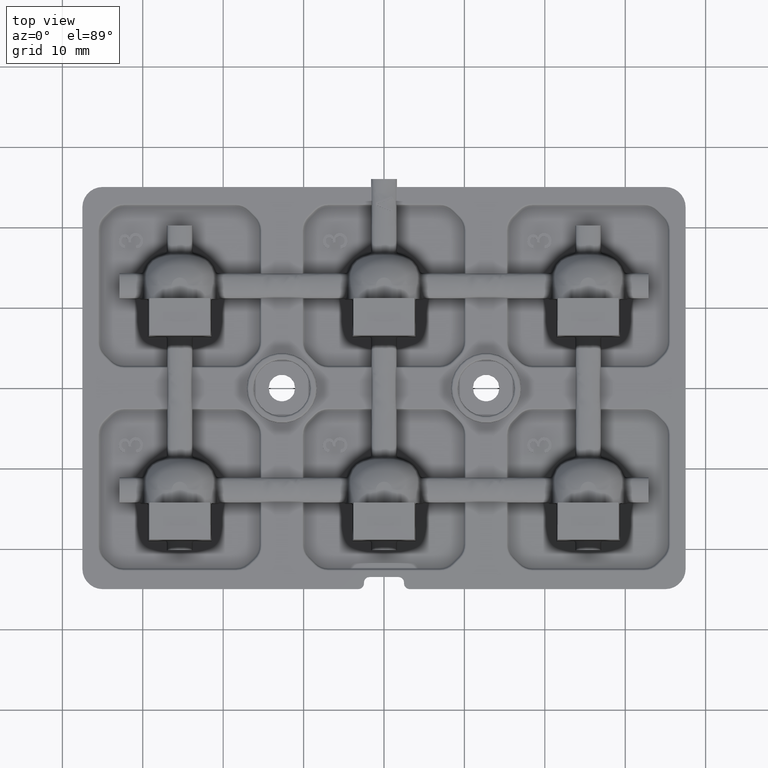
[diagram: clean part render]
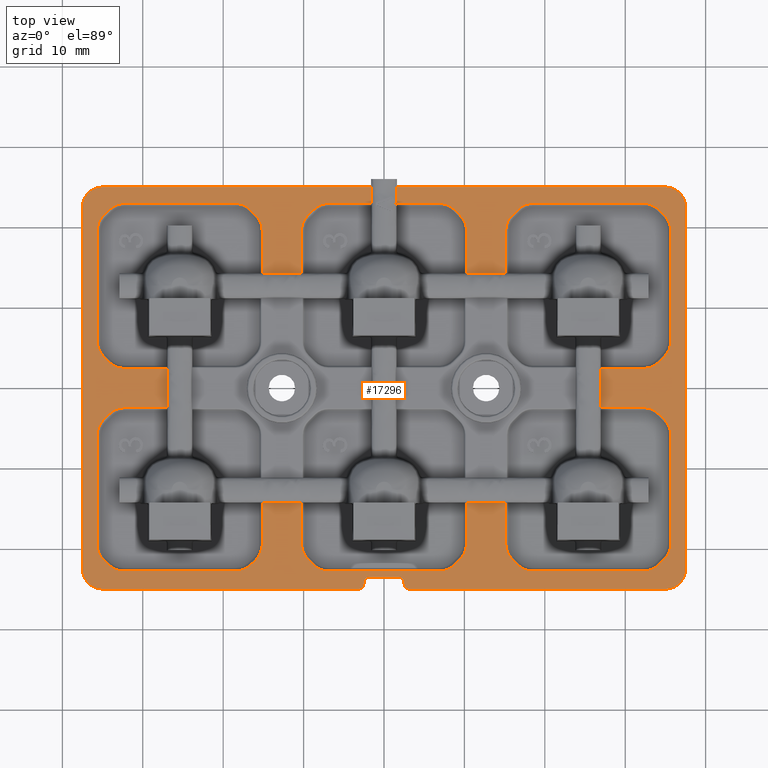
[diagram: same view with one face highlighted and labeled with its STEP entity id]
A machine part, top view. The second image highlights one B-rep face of the part: STEP entity #17296.
In plain terms, the highlighted planar face has unit normal (-0, 0, 1).
Its self-contained STEP definition (entity closure, byte-faithful):
#29 = ORIENTED_EDGE ( 'NONE', *, *, #31997, .T. ) ;
#123 = ORIENTED_EDGE ( 'NONE', *, *, #46769, .T. ) ;
#162 = EDGE_CURVE ( 'NONE', #27522, #34120, #7698, .T. ) ;
#267 = CARTESIAN_POINT ( 'NONE',  ( -34.11339317386688900, 3.183305967234028300, 1.499999999999999800 ) ) ;
#425 = ORIENTED_EDGE ( 'NONE', *, *, #43390, .T. ) ;
#595 = DIRECTION ( 'NONE',  ( 0.0000000000000000000, -0.0000000000000000000, -1.000000000000000000 ) ) ;
#623 = DIRECTION ( 'NONE',  ( 1.000000000000000000, -1.041466188199760900E-015, 0.0000000000000000000 ) ) ;
#641 = ORIENTED_EDGE ( 'NONE', *, *, #46288, .T. ) ;
#752 = ORIENTED_EDGE ( 'NONE', *, *, #48526, .T. ) ;
#872 = DIRECTION ( 'NONE',  ( -0.7071067811865483500, 0.7071067811865465700, -0.0000000000000000000 ) ) ;
#927 = LINE ( 'NONE', #2856, #41829 ) ;
#948 = EDGE_CURVE ( 'NONE', #44679, #1078, #29961, .T. ) ;
#1052 = VERTEX_POINT ( 'NONE', #19856 ) ;
#1078 = VERTEX_POINT ( 'NONE', #27767 ) ;
#1116 = CARTESIAN_POINT ( 'NONE',  ( -33.14999999999999900, -5.753300858899088200, 1.499999999999999800 ) ) ;
#1132 = CARTESIAN_POINT ( 'NONE',  ( -15.15151733829874200, -19.58085892832837500, 1.499999999999999800 ) ) ;
#1158 = VERTEX_POINT ( 'NONE', #48360 ) ;
#1237 = DIRECTION ( 'NONE',  ( 1.000000000000000000, 4.956352788505163300E-016, -0.0000000000000000000 ) ) ;
#1265 = ORIENTED_EDGE ( 'NONE', *, *, #2325, .T. ) ;
#1340 = DIRECTION ( 'NONE',  ( -0.0000000000000000000, 0.0000000000000000000, 1.000000000000000000 ) ) ;
#1348 = CARTESIAN_POINT ( 'NONE',  ( -34.91669403276598200, 3.986606826133133600, 1.499999999999999800 ) ) ;
#1418 = AXIS2_PLACEMENT_3D ( 'NONE', #48044, #24340, #623 ) ;
#1492 = VECTOR ( 'NONE', #44319, 1000.000000000000000 ) ;
#1528 = DIRECTION ( 'NONE',  ( 0.0000000000000000000, -0.0000000000000000000, -1.000000000000000000 ) ) ;
#1626 = CARTESIAN_POINT ( 'NONE',  ( 34.11339317386685400, 3.183305967234021100, 1.499999999999999800 ) ) ;
#1688 = CARTESIAN_POINT ( 'NONE',  ( 34.11339317386685400, 22.21669403276599700, 1.499999999999999800 ) ) ;
#1724 = DIRECTION ( 'NONE',  ( 1.000000000000000000, 0.0000000000000000000, 0.0000000000000000000 ) ) ;
#1729 = EDGE_CURVE ( 'NONE', #41898, #35715, #3261, .T. ) ;
#1790 = VERTEX_POINT ( 'NONE', #47907 ) ;
#1793 = CARTESIAN_POINT ( 'NONE',  ( -34.11339317386688900, 22.21669403276597900, 1.499999999999999800 ) ) ;
#1901 = DIRECTION ( 'NONE',  ( 1.000000000000000000, 0.0000000000000000000, 0.0000000000000000000 ) ) ;
#1996 = ORIENTED_EDGE ( 'NONE', *, *, #42834, .T. ) ;
#2065 = DIRECTION ( 'NONE',  ( 0.7071067811865489100, 0.7071067811865461300, -0.0000000000000000000 ) ) ;
#2067 = DIRECTION ( 'NONE',  ( -0.7411827189750838100, 0.6713033420836678200, -0.0000000000000000000 ) ) ;
#2079 = VECTOR ( 'NONE', #13587, 1000.000000000000100 ) ;
#2126 = CARTESIAN_POINT ( 'NONE',  ( -32.34669914110091300, -4.949999999999991300, 1.499999999999999800 ) ) ;
#2220 = DIRECTION ( 'NONE',  ( 0.0000000000000000000, -0.0000000000000000000, -1.000000000000000000 ) ) ;
#2258 = AXIS2_PLACEMENT_3D ( 'NONE', #44176, #20484, #48149 ) ;
#2325 = EDGE_CURVE ( 'NONE', #1078, #12818, #39781, .T. ) ;
#2356 = VERTEX_POINT ( 'NONE', #23676 ) ;
#2407 = AXIS2_PLACEMENT_3D ( 'NONE', #40842, #17141, #44824 ) ;
#2499 = EDGE_CURVE ( 'NONE', #1052, #7227, #45361, .T. ) ;
#2535 = ORIENTED_EDGE ( 'NONE', *, *, #48318, .T. ) ;
#2598 = EDGE_CURVE ( 'NONE', #41193, #18037, #12524, .T. ) ;
#2687 = CARTESIAN_POINT ( 'NONE',  ( 18.45330085889909500, -22.74848266170124900, 1.499999999999999800 ) ) ;
#2856 = CARTESIAN_POINT ( 'NONE',  ( 2.479214872172065200E-015, -25.01047623084753000, 1.499999999999999800 ) ) ;
#3014 = CARTESIAN_POINT ( 'NONE',  ( 9.516694032765967000, 21.41339317386689000, 1.499999999999999800 ) ) ;
#3144 = DIRECTION ( 'NONE',  ( 1.000000000000000000, 0.0000000000000000000, 0.0000000000000000000 ) ) ;
#3152 = ORIENTED_EDGE ( 'NONE', *, *, #37243, .T. ) ;
#3194 = DIRECTION ( 'NONE',  ( 1.000000000000000000, 0.0000000000000000000, 0.0000000000000000000 ) ) ;
#3261 = CIRCLE ( 'NONE', #9362, 2.498482661701266300 ) ;
#3393 = DIRECTION ( 'NONE',  ( -0.7071067811865414700, 0.7071067811865536800, -0.0000000000000000000 ) ) ;
#3404 = VECTOR ( 'NONE', #44349, 1000.000000000000000 ) ;
#3495 = EDGE_CURVE ( 'NONE', #9084, #18637, #10005, .T. ) ;
#3545 = VECTOR ( 'NONE', #13574, 1000.000000000000100 ) ;
#3585 = ORIENTED_EDGE ( 'NONE', *, *, #26804, .T. ) ;
#3595 = DIRECTION ( 'NONE',  ( -1.000000000000000000, -0.0000000000000000000, -0.0000000000000000000 ) ) ;
#3688 = DIRECTION ( 'NONE',  ( 2.891205793294676400E-016, -1.000000000000000000, -0.0000000000000000000 ) ) ;
#3714 = DIRECTION ( 'NONE',  ( 0.0000000000000000000, -0.0000000000000000000, -1.000000000000000000 ) ) ;
#3882 = LINE ( 'NONE', #31128, #34250 ) ;
#3981 = LINE ( 'NONE', #31830, #44899 ) ;
#3991 = EDGE_CURVE ( 'NONE', #18037, #5402, #30426, .T. ) ;
#4453 = ORIENTED_EDGE ( 'NONE', *, *, #50302, .T. ) ;
#4464 = CARTESIAN_POINT ( 'NONE',  ( -7.749999999999999100, 19.64669914110090000, 1.499999999999999800 ) ) ;
#4547 = VERTEX_POINT ( 'NONE', #35690 ) ;
#4554 = CARTESIAN_POINT ( 'NONE',  ( 6.946699141100892500, 22.94848266170126300, 1.499999999999999800 ) ) ;
#4556 = CARTESIAN_POINT ( 'NONE',  ( 35.64848266170123700, 5.753300858899097000, 1.499999999999999800 ) ) ;
#4561 = CARTESIAN_POINT ( 'NONE',  ( -3.199999999999997100, -24.30000000000000400, 1.499999999999999800 ) ) ;
#4643 = CIRCLE ( 'NONE', #2258, 0.7104762308475245400 ) ;
#4659 = EDGE_CURVE ( 'NONE', #19644, #4547, #14264, .T. ) ;
#5044 = CARTESIAN_POINT ( 'NONE',  ( -32.34669914110089900, 4.949999999999992200, 1.499999999999999800 ) ) ;
#5072 = DIRECTION ( 'NONE',  ( 1.000000000000000000, 1.735776980332937100E-015, 0.0000000000000000000 ) ) ;
#5257 = VECTOR ( 'NONE', #22547, 1000.000000000000000 ) ;
#5354 = EDGE_CURVE ( 'NONE', #7879, #27522, #36517, .T. ) ;
#5367 = ORIENTED_EDGE ( 'NONE', *, *, #44534, .T. ) ;
#5389 = DIRECTION ( 'NONE',  ( 0.0000000000000000000, -0.0000000000000000000, -1.000000000000000000 ) ) ;
#5402 = VERTEX_POINT ( 'NONE', #6582 ) ;
#5461 = VERTEX_POINT ( 'NONE', #15259 ) ;
#5554 = EDGE_CURVE ( 'NONE', #29063, #50380, #40847, .T. ) ;
#5649 = VERTEX_POINT ( 'NONE', #1348 ) ;
#5856 = ORIENTED_EDGE ( 'NONE', *, *, #17134, .T. ) ;
#5923 = EDGE_CURVE ( 'NONE', #37163, #19644, #14817, .T. ) ;
#6049 = LINE ( 'NONE', #31358, #27156 ) ;
#6089 = CARTESIAN_POINT ( 'NONE',  ( -18.45330085889913700, -2.451517338298727600, 1.499999999999999800 ) ) ;
#6124 = DIRECTION ( 'NONE',  ( 1.000000000000000000, 1.735776980332937100E-015, 0.0000000000000000000 ) ) ;
#6268 = VERTEX_POINT ( 'NONE', #20845 ) ;
#6269 = CARTESIAN_POINT ( 'NONE',  ( 18.19999999999999900, 14.25139655774487000, 1.500000000000000200 ) ) ;
#6323 = DIRECTION ( 'NONE',  ( 0.0000000000000000000, -1.000000000000000000, 0.0000000000000000000 ) ) ;
#6345 = VECTOR ( 'NONE', #51255, 1000.000000000000000 ) ;
#6395 = DIRECTION ( 'NONE',  ( 0.0000000000000000000, -0.0000000000000000000, -1.000000000000000000 ) ) ;
#6530 = LINE ( 'NONE', #33760, #5257 ) ;
#6582 = CARTESIAN_POINT ( 'NONE',  ( -1.799999999999996900, -23.51047623084752700, 1.499999999999999800 ) ) ;
#6704 = CIRCLE ( 'NONE', #45907, 2.498482661701263200 ) ;
#6816 = LINE ( 'NONE', #31717, #37150 ) ;
#6842 = AXIS2_PLACEMENT_3D ( 'NONE', #32923, #9204, #36889 ) ;
#6872 = CARTESIAN_POINT ( 'NONE',  ( -34.82723976093815600, -21.43269110084024500, 1.499999999999999800 ) ) ;
#6943 = VERTEX_POINT ( 'NONE', #7130 ) ;
#6988 = EDGE_CURVE ( 'NONE', #50380, #41898, #14700, .T. ) ;
#7020 = DIRECTION ( 'NONE',  ( 0.0000000000000000000, -0.0000000000000000000, -1.000000000000000000 ) ) ;
#7075 = AXIS2_PLACEMENT_3D ( 'NONE', #15282, #42978, #19303 ) ;
#7130 = CARTESIAN_POINT ( 'NONE',  ( -9.516694032765963500, 21.41339317386688600, 1.499999999999999800 ) ) ;
#7177 = ORIENTED_EDGE ( 'NONE', *, *, #34839, .T. ) ;
#7227 = VERTEX_POINT ( 'NONE', #32720 ) ;
#7349 = ORIENTED_EDGE ( 'NONE', *, *, #41190, .T. ) ;
#7629 = ORIENTED_EDGE ( 'NONE', *, *, #162, .T. ) ;
#7645 = DIRECTION ( 'NONE',  ( -0.0000000000000000000, -1.000000000000000000, -0.0000000000000000000 ) ) ;
#7685 = CARTESIAN_POINT ( 'NONE',  ( -7.200000000000002000, -14.25139655774488500, 1.499999999999999800 ) ) ;
#7698 = LINE ( 'NONE', #17164, #28769 ) ;
#7828 = CIRCLE ( 'NONE', #8266, 2.498482661701264500 ) ;
#7879 = VERTEX_POINT ( 'NONE', #12195 ) ;
#7902 = AXIS2_PLACEMENT_3D ( 'NONE', #25956, #2220, #29960 ) ;
#7926 = ORIENTED_EDGE ( 'NONE', *, *, #8837, .T. ) ;
#7983 = DIRECTION ( 'NONE',  ( -1.000000000000000000, -2.477018987411954900E-016, 0.0000000000000000000 ) ) ;
#8008 = ORIENTED_EDGE ( 'NONE', *, *, #948, .T. ) ;
#8023 = CARTESIAN_POINT ( 'NONE',  ( 34.91669403276596700, -3.986606826133148200, 1.499999999999999800 ) ) ;
#8105 = CARTESIAN_POINT ( 'NONE',  ( 16.68660682613312900, -22.01669403276599000, 1.499999999999999800 ) ) ;
#8266 = AXIS2_PLACEMENT_3D ( 'NONE', #33836, #10128, #37824 ) ;
#8309 = CARTESIAN_POINT ( 'NONE',  ( -1.551396557744881600, 25.01047623084751900, 1.499999999999999300 ) ) ;
#8342 = ORIENTED_EDGE ( 'NONE', *, *, #31590, .T. ) ;
#8363 = AXIS2_PLACEMENT_3D ( 'NONE', #27442, #3714, #31423 ) ;
#8430 = ORIENTED_EDGE ( 'NONE', *, *, #45655, .T. ) ;
#8431 = ORIENTED_EDGE ( 'NONE', *, *, #38766, .T. ) ;
#8451 = AXIS2_PLACEMENT_3D ( 'NONE', #17405, #45069, #21346 ) ;
#8471 = DIRECTION ( 'NONE',  ( 1.000000000000000000, 0.0000000000000000000, 0.0000000000000000000 ) ) ;
#8477 = CARTESIAN_POINT ( 'NONE',  ( 10.24848266170126400, 14.25139655774487000, 1.499999999999999800 ) ) ;
#8577 = DIRECTION ( 'NONE',  ( 1.000000000000000000, 0.0000000000000000000, 0.0000000000000000000 ) ) ;
#8837 = EDGE_CURVE ( 'NONE', #49258, #44679, #39380, .T. ) ;
#8889 = DIRECTION ( 'NONE',  ( 0.0000000000000000000, -0.0000000000000000000, -1.000000000000000000 ) ) ;
#8967 = LINE ( 'NONE', #6269, #21994 ) ;
#9023 = CARTESIAN_POINT ( 'NONE',  ( 37.51047623084753000, 22.49999999999999600, 1.499999999999999800 ) ) ;
#9041 = DIRECTION ( 'NONE',  ( 1.000000000000000000, 1.735776980332937100E-015, 0.0000000000000000000 ) ) ;
#9066 = LINE ( 'NONE', #7685, #38196 ) ;
#9084 = VERTEX_POINT ( 'NONE', #8309 ) ;
#9098 = ORIENTED_EDGE ( 'NONE', *, *, #35210, .T. ) ;
#9113 = CARTESIAN_POINT ( 'NONE',  ( 0.0000000000000000000, 25.01047623084751900, 1.499999999999999800 ) ) ;
#9117 = AXIS2_PLACEMENT_3D ( 'NONE', #22287, #49925, #26218 ) ;
#9204 = DIRECTION ( 'NONE',  ( -0.0000000000000000000, 0.0000000000000000000, 1.000000000000000000 ) ) ;
#9210 = LINE ( 'NONE', #14108, #17300 ) ;
#9221 = EDGE_CURVE ( 'NONE', #10175, #25441, #36238, .T. ) ;
#9313 = ORIENTED_EDGE ( 'NONE', *, *, #5354, .T. ) ;
#9348 = CARTESIAN_POINT ( 'NONE',  ( -33.14999999999999900, -19.58085892832839600, 1.499999999999999800 ) ) ;
#9354 = VERTEX_POINT ( 'NONE', #26457 ) ;
#9362 = AXIS2_PLACEMENT_3D ( 'NONE', #39446, #15745, #43437 ) ;
#9509 = VECTOR ( 'NONE', #12006, 1000.000000000000000 ) ;
#9576 = DIRECTION ( 'NONE',  ( -0.0000000000000000000, 1.000000000000000000, -0.0000000000000000000 ) ) ;
#9580 = VERTEX_POINT ( 'NONE', #21081 ) ;
#9655 = VERTEX_POINT ( 'NONE', #45629 ) ;
#9715 = AXIS2_PLACEMENT_3D ( 'NONE', #9348, #37031, #13323 ) ;
#9717 = ORIENTED_EDGE ( 'NONE', *, *, #40823, .T. ) ;
#9769 = DIRECTION ( 'NONE',  ( -1.000000000000000000, -0.0000000000000000000, -0.0000000000000000000 ) ) ;
#9881 = CARTESIAN_POINT ( 'NONE',  ( 32.34669914110087800, 2.451517338298730800, 1.499999999999999800 ) ) ;
#9940 = CARTESIAN_POINT ( 'NONE',  ( 34.11339317386685400, -22.01669403276596200, 1.499999999999999800 ) ) ;
#10005 = LINE ( 'NONE', #36684, #11255 ) ;
#10011 = DIRECTION ( 'NONE',  ( 1.387778780781445700E-016, -1.000000000000000000, -0.0000000000000000000 ) ) ;
#10128 = DIRECTION ( 'NONE',  ( 0.0000000000000000000, -0.0000000000000000000, -1.000000000000000000 ) ) ;
#10138 = AXIS2_PLACEMENT_3D ( 'NONE', #18373, #46059, #22357 ) ;
#10175 = VERTEX_POINT ( 'NONE', #45926 ) ;
#10178 = AXIS2_PLACEMENT_3D ( 'NONE', #32602, #8889, #36597 ) ;
#10183 = LINE ( 'NONE', #37288, #2079 ) ;
#10185 = CIRCLE ( 'NONE', #32202, 2.498482661701266300 ) ;
#10207 = AXIS2_PLACEMENT_3D ( 'NONE', #25060, #1340, #29068 ) ;
#10251 = VERTEX_POINT ( 'NONE', #33379 ) ;
#10411 = AXIS2_PLACEMENT_3D ( 'NONE', #2126, #29880, #6124 ) ;
#10488 = VECTOR ( 'NONE', #9576, 1000.000000000000000 ) ;
#10533 = EDGE_CURVE ( 'NONE', #5461, #41193, #11427, .T. ) ;
#10541 = AXIS2_PLACEMENT_3D ( 'NONE', #49145, #25457, #1724 ) ;
#10642 = EDGE_CURVE ( 'NONE', #25441, #7879, #10183, .T. ) ;
#10673 = VERTEX_POINT ( 'NONE', #25520 ) ;
#10784 = VECTOR ( 'NONE', #42434, 1000.000000000000000 ) ;
#10834 = VERTEX_POINT ( 'NONE', #26889 ) ;
#10927 = ORIENTED_EDGE ( 'NONE', *, *, #34218, .T. ) ;
#11109 = CARTESIAN_POINT ( 'NONE',  ( 26.95139655774488200, -2.451517338298728100, 1.499999999999999800 ) ) ;
#11175 = CARTESIAN_POINT ( 'NONE',  ( -32.34669914110091300, 2.451517338298730800, 1.499999999999999800 ) ) ;
#11195 = ORIENTED_EDGE ( 'NONE', *, *, #2499, .T. ) ;
#11201 = CIRCLE ( 'NONE', #46523, 2.498482661701264100 ) ;
#11229 = EDGE_CURVE ( 'NONE', #6268, #37163, #39860, .T. ) ;
#11234 = ORIENTED_EDGE ( 'NONE', *, *, #37623, .T. ) ;
#11235 = VECTOR ( 'NONE', #41473, 1000.000000000000100 ) ;
#11255 = VECTOR ( 'NONE', #24754, 1000.000000000000000 ) ;
#11256 = LINE ( 'NONE', #9113, #20536 ) ;
#11411 = CARTESIAN_POINT ( 'NONE',  ( -7.200000000000002000, 14.25139655774487000, 1.500000000000000200 ) ) ;
#11427 = CIRCLE ( 'NONE', #34458, 0.7104762308475240900 ) ;
#11620 = ORIENTED_EDGE ( 'NONE', *, *, #40496, .T. ) ;
#11797 = DIRECTION ( 'NONE',  ( -2.091704922703429400E-015, 1.000000000000000000, -0.0000000000000000000 ) ) ;
#12006 = DIRECTION ( 'NONE',  ( 0.7071067811865469100, -0.7071067811865482400, 0.0000000000000000000 ) ) ;
#12102 = VERTEX_POINT ( 'NONE', #27750 ) ;
#12136 = VERTEX_POINT ( 'NONE', #12519 ) ;
#12195 = CARTESIAN_POINT ( 'NONE',  ( -15.88330596723404000, 21.41339317386689700, 1.499999999999999800 ) ) ;
#12378 = VERTEX_POINT ( 'NONE', #26670 ) ;
#12519 = CARTESIAN_POINT ( 'NONE',  ( 35.64848266170123700, 19.64669914110092800, 1.499999999999999800 ) ) ;
#12524 = LINE ( 'NONE', #36603, #32334 ) ;
#12606 = VERTEX_POINT ( 'NONE', #48277 ) ;
#12651 = CARTESIAN_POINT ( 'NONE',  ( -35.64848266170125900, -5.753300858899088200, 1.499999999999999800 ) ) ;
#12818 = VERTEX_POINT ( 'NONE', #46030 ) ;
#12854 = LINE ( 'NONE', #33297, #3545 ) ;
#12894 = DIRECTION ( 'NONE',  ( -0.0000000000000000000, 1.000000000000000000, -0.0000000000000000000 ) ) ;
#12895 = VERTEX_POINT ( 'NONE', #4556 ) ;
#13064 = ORIENTED_EDGE ( 'NONE', *, *, #27113, .T. ) ;
#13079 = CARTESIAN_POINT ( 'NONE',  ( -6.946699141100888000, -22.74848266170126000, 1.499999999999999800 ) ) ;
#13111 = ORIENTED_EDGE ( 'NONE', *, *, #43118, .F. ) ;
#13323 = DIRECTION ( 'NONE',  ( 1.000000000000000000, 4.165864752799049000E-015, 0.0000000000000000000 ) ) ;
#13336 = CARTESIAN_POINT ( 'NONE',  ( -15.15151733829874200, 19.64669914110091400, 1.499999999999999800 ) ) ;
#13469 = EDGE_CURVE ( 'NONE', #21816, #29063, #28623, .T. ) ;
#13574 = DIRECTION ( 'NONE',  ( 0.7071067811865396900, 0.7071067811865553400, -0.0000000000000000000 ) ) ;
#13587 = DIRECTION ( 'NONE',  ( 0.7071067811865490200, -0.7071067811865460200, 0.0000000000000000000 ) ) ;
#13586 = DIRECTION ( 'NONE',  ( 0.0000000000000000000, -0.0000000000000000000, -1.000000000000000000 ) ) ;
#13692 = CARTESIAN_POINT ( 'NONE',  ( 32.34669914110086400, -20.24999999999998200, 1.499999999999999800 ) ) ;
#13748 = CARTESIAN_POINT ( 'NONE',  ( -34.11339317386689600, 22.21669403276597500, 1.499999999999999800 ) ) ;
#13756 = AXIS2_PLACEMENT_3D ( 'NONE', #41933, #18243, #45915 ) ;
#13967 = CARTESIAN_POINT ( 'NONE',  ( -37.51047623084752300, -5.205624297017697500E-015, 1.499999999999999800 ) ) ;
#14108 = CARTESIAN_POINT ( 'NONE',  ( 8.713393173866856900, -22.01669403276597900, 1.499999999999999800 ) ) ;
#14159 = VERTEX_POINT ( 'NONE', #27081 ) ;
#14256 = VERTEX_POINT ( 'NONE', #31573 ) ;
#14261 = CARTESIAN_POINT ( 'NONE',  ( 17.64999999999997400, 19.64669914110090700, 1.499999999999999800 ) ) ;
#14264 = LINE ( 'NONE', #28593, #42151 ) ;
#14346 = ORIENTED_EDGE ( 'NONE', *, *, #27472, .T. ) ;
#14700 = LINE ( 'NONE', #23448, #15944 ) ;
#14727 = CARTESIAN_POINT ( 'NONE',  ( 18.45330085889909500, -22.74848266170124900, 1.499999999999999800 ) ) ;
#14783 = ORIENTED_EDGE ( 'NONE', *, *, #49879, .T. ) ;
#14789 = CIRCLE ( 'NONE', #45679, 2.498482661701264100 ) ;
#14803 = CIRCLE ( 'NONE', #15049, 2.510476230847526100 ) ;
#14817 = CIRCLE ( 'NONE', #9117, 2.498482661701263200 ) ;
#14818 = CARTESIAN_POINT ( 'NONE',  ( -32.41120463315430600, -22.74848266170125300, 1.499999999999999800 ) ) ;
#14877 = FACE_OUTER_BOUND ( 'NONE', #21467, .T. ) ;
#14947 = LINE ( 'NONE', #13079, #44042 ) ;
#15049 = AXIS2_PLACEMENT_3D ( 'NONE', #45013, #21298, #48973 ) ;
#15093 = CARTESIAN_POINT ( 'NONE',  ( 1.800000000000002500, -24.20000000000000300, 1.499999999999999800 ) ) ;
#15200 = DIRECTION ( 'NONE',  ( -0.7411827189750821400, -0.6713033420836697100, -0.0000000000000000000 ) ) ;
#15202 = VECTOR ( 'NONE', #10011, 1000.000000000000000 ) ;
#15259 = CARTESIAN_POINT ( 'NONE',  ( -3.199999999999997100, -25.01047623084753000, 1.499999999999999800 ) ) ;
#15282 = CARTESIAN_POINT ( 'NONE',  ( -6.946699141100885400, 20.45000000000000300, 1.499999999999999800 ) ) ;
#15302 = CARTESIAN_POINT ( 'NONE',  ( 32.34669914110089200, 22.94848266170127400, 1.499999999999999800 ) ) ;
#15397 = VECTOR ( 'NONE', #7983, 1000.000000000000000 ) ;
#15406 = LINE ( 'NONE', #11411, #45751 ) ;
#15745 = DIRECTION ( 'NONE',  ( 0.0000000000000000000, -0.0000000000000000000, -1.000000000000000000 ) ) ;
#15802 = DIRECTION ( 'NONE',  ( 1.000000000000000000, -0.0000000000000000000, 0.0000000000000000000 ) ) ;
#15935 = VERTEX_POINT ( 'NONE', #17015 ) ;
#15941 = CARTESIAN_POINT ( 'NONE',  ( 15.15151733829871000, 14.25139655774487000, 1.499999999999999800 ) ) ;
#15944 = VECTOR ( 'NONE', #51068, 1000.000000000000000 ) ;
#15961 = CIRCLE ( 'NONE', #10207, 2.510476230847526100 ) ;
#16211 = DIRECTION ( 'NONE',  ( 2.201794655477292800E-016, 1.000000000000000000, -0.0000000000000000000 ) ) ;
#16235 = CARTESIAN_POINT ( 'NONE',  ( 34.91669403276594600, 21.41339317386690400, 1.499999999999999800 ) ) ;
#16274 = DIRECTION ( 'NONE',  ( 0.0000000000000000000, -0.0000000000000000000, -1.000000000000000000 ) ) ;
#16358 = ORIENTED_EDGE ( 'NONE', *, *, #38929, .T. ) ;
#16367 = DIRECTION ( 'NONE',  ( -0.0000000000000000000, -1.000000000000000000, -0.0000000000000000000 ) ) ;
#16427 = LINE ( 'NONE', #13967, #15202 ) ;
#16440 = ORIENTED_EDGE ( 'NONE', *, *, #37785, .T. ) ;
#16499 = CARTESIAN_POINT ( 'NONE',  ( 15.15151733829871000, -14.25139655774488500, 1.499999999999999800 ) ) ;
#16794 = VERTEX_POINT ( 'NONE', #20869 ) ;
#16804 = VECTOR ( 'NONE', #49237, 1000.000000000000000 ) ;
#17007 = LINE ( 'NONE', #26959, #46104 ) ;
#17015 = CARTESIAN_POINT ( 'NONE',  ( 8.713393173866862200, 22.21669403276598900, 1.499999999999999800 ) ) ;
#17083 = DIRECTION ( 'NONE',  ( -1.000000000000000000, -4.403589310954595000E-016, -0.0000000000000000000 ) ) ;
#17091 = LINE ( 'NONE', #43276, #26343 ) ;
#17134 = EDGE_CURVE ( 'NONE', #20762, #10175, #6816, .T. ) ;
#17141 = DIRECTION ( 'NONE',  ( 0.0000000000000000000, -0.0000000000000000000, -1.000000000000000000 ) ) ;
#17164 = CARTESIAN_POINT ( 'NONE',  ( -15.15151733829874200, 5.753300858899107700, 1.499999999999999800 ) ) ;
#17193 = CARTESIAN_POINT ( 'NONE',  ( 33.14999999999997000, -5.753300858899103300, 1.499999999999999800 ) ) ;
#17296 = ADVANCED_FACE ( 'NONE', ( #14877 ), #48816, .T. ) ;
#17300 = VECTOR ( 'NONE', #41810, 1000.000000000000000 ) ;
#17309 = CARTESIAN_POINT ( 'NONE',  ( 33.14999999999997000, 19.64669914110092100, 1.499999999999999800 ) ) ;
#17315 = VERTEX_POINT ( 'NONE', #21661 ) ;
#17318 = ORIENTED_EDGE ( 'NONE', *, *, #46960, .T. ) ;
#17364 = LINE ( 'NONE', #31229, #37137 ) ;
#17405 = CARTESIAN_POINT ( 'NONE',  ( -32.34669914110091300, 20.45000000000000300, 1.499999999999999800 ) ) ;
#17430 = CIRCLE ( 'NONE', #33324, 2.498482661701266300 ) ;
#17596 = CARTESIAN_POINT ( 'NONE',  ( 34.91669403276596000, -3.986606826133138400, 1.499999999999999800 ) ) ;
#17602 = DIRECTION ( 'NONE',  ( -0.0000000000000000000, -1.000000000000000000, 0.0000000000000000000 ) ) ;
#17660 = VECTOR ( 'NONE', #6323, 1000.000000000000000 ) ;
#17698 = DIRECTION ( 'NONE',  ( 1.000000000000000000, 0.0000000000000000000, 0.0000000000000000000 ) ) ;
#17848 = LINE ( 'NONE', #44062, #27110 ) ;
#18002 = CARTESIAN_POINT ( 'NONE',  ( 33.14999999999997000, 5.753300858899095300, 1.499999999999999800 ) ) ;
#18037 = VERTEX_POINT ( 'NONE', #34746 ) ;
#18059 = DIRECTION ( 'NONE',  ( 1.000000000000000000, 2.201794655477297500E-016, -0.0000000000000000000 ) ) ;
#18122 = VECTOR ( 'NONE', #2065, 1000.000000000000100 ) ;
#18184 = LINE ( 'NONE', #27562, #6345 ) ;
#18243 = DIRECTION ( 'NONE',  ( 0.0000000000000000000, -0.0000000000000000000, -1.000000000000000000 ) ) ;
#18279 = DIRECTION ( 'NONE',  ( 1.000000000000000000, 0.0000000000000000000, 0.0000000000000000000 ) ) ;
#18284 = CARTESIAN_POINT ( 'NONE',  ( 34.11339317386684700, -22.01669403276596200, 1.499999999999999800 ) ) ;
#18311 = LINE ( 'NONE', #27011, #27549 ) ;
#18361 = AXIS2_PLACEMENT_3D ( 'NONE', #14261, #41973, #18279 ) ;
#18368 = VERTEX_POINT ( 'NONE', #25231 ) ;
#18373 = CARTESIAN_POINT ( 'NONE',  ( -33.14999999999998400, 5.753300858899096100, 1.499999999999999800 ) ) ;
#18396 = ORIENTED_EDGE ( 'NONE', *, *, #27653, .T. ) ;
#18637 = VERTEX_POINT ( 'NONE', #36099 ) ;
#18641 = CARTESIAN_POINT ( 'NONE',  ( 6.946699141100892500, -20.24999999999999300, 1.499999999999999800 ) ) ;
#18701 = CIRCLE ( 'NONE', #1418, 2.498482661701266300 ) ;
#18766 = VERTEX_POINT ( 'NONE', #17596 ) ;
#18980 = CARTESIAN_POINT ( 'NONE',  ( 10.24848266170126400, 19.64669914110091000, 1.499999999999999800 ) ) ;
#19104 = DIRECTION ( 'NONE',  ( 1.000000000000000000, 0.0000000000000000000, 0.0000000000000000000 ) ) ;
#19214 = VECTOR ( 'NONE', #18059, 1000.000000000000000 ) ;
#19249 = CARTESIAN_POINT ( 'NONE',  ( -15.97276023906184900, -21.43269110084022000, 1.499999999999999800 ) ) ;
#19303 = DIRECTION ( 'NONE',  ( 1.000000000000000000, -1.388621584266348900E-015, 0.0000000000000000000 ) ) ;
#19491 = LINE ( 'NONE', #22435, #40490 ) ;
#19618 = AXIS2_PLACEMENT_3D ( 'NONE', #30140, #6395, #34113 ) ;
#19644 = VERTEX_POINT ( 'NONE', #8105 ) ;
#19856 = CARTESIAN_POINT ( 'NONE',  ( -35.64848266170125200, 5.753300858899095300, 1.499999999999999800 ) ) ;
#19859 = ORIENTED_EDGE ( 'NONE', *, *, #5923, .T. ) ;
#20025 = VERTEX_POINT ( 'NONE', #6872 ) ;
#20046 = AXIS2_PLACEMENT_3D ( 'NONE', #37287, #13586, #41285 ) ;
#20146 = ORIENTED_EDGE ( 'NONE', *, *, #34770, .T. ) ;
#20212 = VERTEX_POINT ( 'NONE', #267 ) ;
#20407 = LINE ( 'NONE', #25965, #19214 ) ;
#20484 = DIRECTION ( 'NONE',  ( -0.0000000000000000000, 0.0000000000000000000, 1.000000000000000000 ) ) ;
#20536 = VECTOR ( 'NONE', #25208, 1000.000000000000000 ) ;
#20540 = DIRECTION ( 'NONE',  ( 1.000000000000000000, 2.201794655477297500E-016, -0.0000000000000000000 ) ) ;
#20548 = CARTESIAN_POINT ( 'NONE',  ( -34.11339317386691100, -3.183305967234034000, 1.499999999999999800 ) ) ;
#20700 = LINE ( 'NONE', #18284, #31224 ) ;
#20762 = VERTEX_POINT ( 'NONE', #45712 ) ;
#20845 = CARTESIAN_POINT ( 'NONE',  ( 32.34669914110087800, -22.74848266170124600, 1.499999999999999800 ) ) ;
#20859 = LINE ( 'NONE', #1132, #31374 ) ;
#20869 = CARTESIAN_POINT ( 'NONE',  ( 2.489523769152478300, -24.30000000000000400, 1.499999999999999800 ) ) ;
#20953 = ORIENTED_EDGE ( 'NONE', *, *, #34601, .T. ) ;
#21000 = VERTEX_POINT ( 'NONE', #29379 ) ;
#21020 = LINE ( 'NONE', #29320, #10488 ) ;
#21078 = EDGE_CURVE ( 'NONE', #42034, #5461, #927, .T. ) ;
#21081 = CARTESIAN_POINT ( 'NONE',  ( -26.95139655774488200, -2.451517338298727200, 1.499999999999999800 ) ) ;
#21150 = DIRECTION ( 'NONE',  ( 1.000000000000000000, -6.943107921331739700E-015, 0.0000000000000000000 ) ) ;
#21204 = ORIENTED_EDGE ( 'NONE', *, *, #36714, .T. ) ;
#21261 = DIRECTION ( 'NONE',  ( 1.000000000000000000, 4.165864752799043500E-015, 0.0000000000000000000 ) ) ;
#21298 = DIRECTION ( 'NONE',  ( -0.0000000000000000000, 0.0000000000000000000, 1.000000000000000000 ) ) ;
#21321 = DIRECTION ( 'NONE',  ( -1.387778780781446200E-016, 1.000000000000000000, -0.0000000000000000000 ) ) ;
#21346 = DIRECTION ( 'NONE',  ( 1.000000000000000000, -1.388621584266349700E-015, 0.0000000000000000000 ) ) ;
#21384 = CARTESIAN_POINT ( 'NONE',  ( -2.489523769152472500, -24.30000000000000400, 1.499999999999999800 ) ) ;
#21467 = EDGE_LOOP ( 'NONE', ( #33312, #44453, #3585, #34805, #1996, #47360, #31388, #23361, #44379, #25375, #33512, #47271, #41178, #11620, #24647, #21525, #32894, #21204, #16358, #8431, #41235, #10927, #24744, #13064, #4453, #13111, #50614, #34538, #31406, #41553, #49646, #44828, #42505, #40586, #9717, #22905, #641, #24913, #49651, #28915, #22875, #20953, #29, #14346, #44167, #51109, #8342, #51175, #32734, #19859, #23082, #50179, #8430, #43246, #7349, #28492, #3152, #23736, #20146, #7177, #28242, #25358, #50763, #2535, #25178, #47439, #21528, #7926, #8008, #1265, #752, #39302, #425, #27593, #23531, #17318, #11234, #31348, #16440, #9098, #46939, #37722, #11195, #123, #47939, #18396, #5856, #33351, #47698, #9313, #7629, #35621, #40044, #5367, #14783, #29100 ) ) ;
#21484 = CARTESIAN_POINT ( 'NONE',  ( 1.239607436086032300E-014, -25.01047623084753000, 1.499999999999999800 ) ) ;
#21492 = AXIS2_PLACEMENT_3D ( 'NONE', #25261, #1528, #29261 ) ;
#21525 = ORIENTED_EDGE ( 'NONE', *, *, #45985, .T. ) ;
#21528 = ORIENTED_EDGE ( 'NONE', *, *, #22056, .T. ) ;
#21554 = CIRCLE ( 'NONE', #10411, 2.498482661701263200 ) ;
#21577 = CARTESIAN_POINT ( 'NONE',  ( 18.19999999999999900, -14.25139655774488500, 1.499999999999999800 ) ) ;
#21661 = CARTESIAN_POINT ( 'NONE',  ( -10.24848266170126400, -14.25139655774488500, 1.499999999999999800 ) ) ;
#21755 = EDGE_CURVE ( 'NONE', #45729, #6268, #10185, .T. ) ;
#21756 = CARTESIAN_POINT ( 'NONE',  ( 1.551396557744881600, 25.01047623084751900, 1.499999999999999600 ) ) ;
#21816 = VERTEX_POINT ( 'NONE', #40668 ) ;
#21946 = DIRECTION ( 'NONE',  ( 1.000000000000000000, 0.0000000000000000000, 0.0000000000000000000 ) ) ;
#21994 = VECTOR ( 'NONE', #30015, 1000.000000000000000 ) ;
#22009 = CIRCLE ( 'NONE', #6842, 2.510476230847526100 ) ;
#22056 = EDGE_CURVE ( 'NONE', #46328, #49258, #17007, .T. ) ;
#22287 = CARTESIAN_POINT ( 'NONE',  ( 18.45330085889908700, -20.24999999999998600, 1.499999999999999800 ) ) ;
#22357 = DIRECTION ( 'NONE',  ( 1.000000000000000000, 3.471553960665874200E-015, 0.0000000000000000000 ) ) ;
#22435 = CARTESIAN_POINT ( 'NONE',  ( 9.516694032765967000, 21.41339317386689000, 1.499999999999999800 ) ) ;
#22525 = CARTESIAN_POINT ( 'NONE',  ( -8.713393173866862200, -22.01669403276597900, 1.499999999999999800 ) ) ;
#22547 = DIRECTION ( 'NONE',  ( -1.000000000000000000, -5.504486638693240100E-017, -0.0000000000000000000 ) ) ;
#22553 = CARTESIAN_POINT ( 'NONE',  ( -37.51047623084752300, 22.49999999999999300, 1.499999999999999800 ) ) ;
#22615 = DIRECTION ( 'NONE',  ( 1.000000000000000000, 1.388621584266349100E-015, 0.0000000000000000000 ) ) ;
#22875 = ORIENTED_EDGE ( 'NONE', *, *, #37161, .T. ) ;
#22905 = ORIENTED_EDGE ( 'NONE', *, *, #40892, .T. ) ;
#22906 = CARTESIAN_POINT ( 'NONE',  ( -16.68660682613314000, 22.21669403276599300, 1.499999999999999800 ) ) ;
#22942 = VERTEX_POINT ( 'NONE', #8477 ) ;
#23000 = LINE ( 'NONE', #39478, #32221 ) ;
#23053 = DIRECTION ( 'NONE',  ( 0.0000000000000000000, -0.0000000000000000000, -1.000000000000000000 ) ) ;
#23058 = DIRECTION ( 'NONE',  ( -0.7071067811865476800, -0.7071067811865473500, -0.0000000000000000000 ) ) ;
#23082 = ORIENTED_EDGE ( 'NONE', *, *, #4659, .T. ) ;
#23361 = ORIENTED_EDGE ( 'NONE', *, *, #10533, .T. ) ;
#23425 = VECTOR ( 'NONE', #9769, 1000.000000000000000 ) ;
#23448 = CARTESIAN_POINT ( 'NONE',  ( 32.34669914110089200, 22.94848266170126600, 1.499999999999999800 ) ) ;
#23466 = VERTEX_POINT ( 'NONE', #48736 ) ;
#23531 = ORIENTED_EDGE ( 'NONE', *, *, #38921, .T. ) ;
#23645 = CIRCLE ( 'NONE', #39634, 2.498482661701264500 ) ;
#23676 = CARTESIAN_POINT ( 'NONE',  ( 35.64848266170123700, -5.753300858899105000, 1.499999999999999800 ) ) ;
#23736 = ORIENTED_EDGE ( 'NONE', *, *, #37311, .T. ) ;
#23815 = VERTEX_POINT ( 'NONE', #32619 ) ;
#24039 = EDGE_CURVE ( 'NONE', #27717, #21816, #47926, .T. ) ;
#24115 = CIRCLE ( 'NONE', #49623, 2.498482661701264500 ) ;
#24133 = VECTOR ( 'NONE', #21321, 1000.000000000000000 ) ;
#24315 = CARTESIAN_POINT ( 'NONE',  ( -18.38879536684574100, -20.24999999999998900, 1.499999999999999800 ) ) ;
#24340 = DIRECTION ( 'NONE',  ( 0.0000000000000000000, -0.0000000000000000000, -1.000000000000000000 ) ) ;
#24487 = DIRECTION ( 'NONE',  ( -1.321076793286375500E-015, 1.000000000000000000, -0.0000000000000000000 ) ) ;
#24618 = CIRCLE ( 'NONE', #33753, 2.498482661701263200 ) ;
#24647 = ORIENTED_EDGE ( 'NONE', *, *, #40575, .T. ) ;
#24744 = ORIENTED_EDGE ( 'NONE', *, *, #31641, .T. ) ;
#24754 = DIRECTION ( 'NONE',  ( -0.0000000000000000000, -1.000000000000000000, -0.0000000000000000000 ) ) ;
#24757 = VERTEX_POINT ( 'NONE', #26586 ) ;
#24913 = ORIENTED_EDGE ( 'NONE', *, *, #42283, .T. ) ;
#25060 = CARTESIAN_POINT ( 'NONE',  ( -34.99999999999999300, -22.50000000000001100, 1.499999999999999800 ) ) ;
#25092 = CIRCLE ( 'NONE', #44766, 2.498482661701266300 ) ;
#25114 = EDGE_CURVE ( 'NONE', #41481, #17315, #18184, .T. ) ;
#25178 = ORIENTED_EDGE ( 'NONE', *, *, #41140, .T. ) ;
#25208 = DIRECTION ( 'NONE',  ( -1.000000000000000000, -0.0000000000000000000, -0.0000000000000000000 ) ) ;
#25231 = CARTESIAN_POINT ( 'NONE',  ( -10.24848266170126400, 19.64669914110090300, 1.499999999999999800 ) ) ;
#25261 = CARTESIAN_POINT ( 'NONE',  ( -18.45330085889910500, 20.45000000000000300, 1.499999999999999800 ) ) ;
#25358 = ORIENTED_EDGE ( 'NONE', *, *, #29675, .T. ) ;
#25375 = ORIENTED_EDGE ( 'NONE', *, *, #3991, .T. ) ;
#25441 = VERTEX_POINT ( 'NONE', #22906 ) ;
#25457 = DIRECTION ( 'NONE',  ( -0.0000000000000000000, 0.0000000000000000000, 1.000000000000000000 ) ) ;
#25520 = CARTESIAN_POINT ( 'NONE',  ( 6.946699141100897800, -22.74848266170125300, 1.499999999999999800 ) ) ;
#25522 = VECTOR ( 'NONE', #24487, 1000.000000000000000 ) ;
#25588 = CARTESIAN_POINT ( 'NONE',  ( -18.38879536684574800, -22.74848266170125300, 1.499999999999999800 ) ) ;
#25623 = DIRECTION ( 'NONE',  ( -0.0000000000000000000, 0.0000000000000000000, 1.000000000000000000 ) ) ;
#25761 = VERTEX_POINT ( 'NONE', #33289 ) ;
#25898 = LINE ( 'NONE', #35526, #15397 ) ;
#25956 = CARTESIAN_POINT ( 'NONE',  ( 33.14999999999997000, -19.44669914110087900, 1.499999999999999800 ) ) ;
#25965 = CARTESIAN_POINT ( 'NONE',  ( 6.946699141100892500, 22.94848266170126300, 1.499999999999999800 ) ) ;
#26066 = CARTESIAN_POINT ( 'NONE',  ( 35.64848266170123700, -19.44669914110088600, 1.499999999999999800 ) ) ;
#26218 = DIRECTION ( 'NONE',  ( 1.000000000000000000, -1.388621584266349700E-015, 0.0000000000000000000 ) ) ;
#26343 = VECTOR ( 'NONE', #47258, 1000.000000000000000 ) ;
#26402 = VERTEX_POINT ( 'NONE', #9881 ) ;
#26422 = CARTESIAN_POINT ( 'NONE',  ( 32.34669914110087100, -2.451517338298728100, 1.499999999999999800 ) ) ;
#26457 = CARTESIAN_POINT ( 'NONE',  ( 1.800000000000002300, -23.51047623084752700, 1.499999999999999800 ) ) ;
#26509 = VERTEX_POINT ( 'NONE', #34101 ) ;
#26584 = CARTESIAN_POINT ( 'NONE',  ( -26.95139655774488200, 2.451517338298732100, 1.499999999999999800 ) ) ;
#26586 = CARTESIAN_POINT ( 'NONE',  ( -6.946699141100888000, -22.74848266170126400, 1.499999999999999800 ) ) ;
#26587 = DIRECTION ( 'NONE',  ( 1.000000000000000000, 9.912705577010326800E-017, -0.0000000000000000000 ) ) ;
#26670 = CARTESIAN_POINT ( 'NONE',  ( 35.00000000000000000, 25.01047623084751900, 1.499999999999999800 ) ) ;
#26804 = EDGE_CURVE ( 'NONE', #9084, #34409, #11256, .T. ) ;
#26860 = DIRECTION ( 'NONE',  ( 0.0000000000000000000, -0.0000000000000000000, -1.000000000000000000 ) ) ;
#26889 = CARTESIAN_POINT ( 'NONE',  ( 8.713393173866864000, -22.01669403276597900, 1.499999999999999800 ) ) ;
#26914 = DIRECTION ( 'NONE',  ( 0.0000000000000000000, -0.0000000000000000000, -1.000000000000000000 ) ) ;
#26959 = CARTESIAN_POINT ( 'NONE',  ( -16.71155560590758400, -22.10183217251184100, 1.499999999999999800 ) ) ;
#27011 = CARTESIAN_POINT ( 'NONE',  ( 0.0000000000000000000, -23.51047623084752700, 1.499999999999999800 ) ) ;
#27081 = CARTESIAN_POINT ( 'NONE',  ( -37.51047623084752300, -22.50000000000001400, 1.499999999999999800 ) ) ;
#27110 = VECTOR ( 'NONE', #16367, 1000.000000000000000 ) ;
#27113 = EDGE_CURVE ( 'NONE', #47077, #41380, #23645, .T. ) ;
#27156 = VECTOR ( 'NONE', #7645, 1000.000000000000000 ) ;
#27311 = LINE ( 'NONE', #21577, #16804 ) ;
#27442 = CARTESIAN_POINT ( 'NONE',  ( -32.41120463315429100, -20.24999999999998900, 1.499999999999999800 ) ) ;
#27472 = EDGE_CURVE ( 'NONE', #18766, #2356, #17430, .T. ) ;
#27522 = VERTEX_POINT ( 'NONE', #13336 ) ;
#27549 = VECTOR ( 'NONE', #50896, 1000.000000000000000 ) ;
#27562 = CARTESIAN_POINT ( 'NONE',  ( -10.24848266170125800, -5.753300858899101500, 1.499999999999999800 ) ) ;
#27593 = ORIENTED_EDGE ( 'NONE', *, *, #38849, .T. ) ;
#27653 = EDGE_CURVE ( 'NONE', #31543, #20762, #34745, .T. ) ;
#27717 = VERTEX_POINT ( 'NONE', #33456 ) ;
#27750 = CARTESIAN_POINT ( 'NONE',  ( 26.95139655774488200, 2.451517338298730300, 1.499999999999999800 ) ) ;
#27767 = CARTESIAN_POINT ( 'NONE',  ( -32.41120463315430600, -22.74848266170125300, 1.499999999999999800 ) ) ;
#28078 = EDGE_CURVE ( 'NONE', #5649, #1052, #45874, .T. ) ;
#28187 = CIRCLE ( 'NONE', #29221, 2.498482661701266300 ) ;
#28242 = ORIENTED_EDGE ( 'NONE', *, *, #32237, .T. ) ;
#28287 = DIRECTION ( 'NONE',  ( 1.000000000000000000, 0.0000000000000000000, 0.0000000000000000000 ) ) ;
#28323 = LINE ( 'NONE', #4554, #42704 ) ;
#28492 = ORIENTED_EDGE ( 'NONE', *, *, #41263, .T. ) ;
#28502 = VERTEX_POINT ( 'NONE', #29372 ) ;
#28593 = CARTESIAN_POINT ( 'NONE',  ( 15.88330596723401900, -21.21339317386688400, 1.499999999999999800 ) ) ;
#28623 = LINE ( 'NONE', #49525, #18122 ) ;
#28625 = VERTEX_POINT ( 'NONE', #49935 ) ;
#28769 = VECTOR ( 'NONE', #44839, 1000.000000000000000 ) ;
#28824 = DIRECTION ( 'NONE',  ( 0.0000000000000000000, -0.0000000000000000000, -1.000000000000000000 ) ) ;
#28915 = ORIENTED_EDGE ( 'NONE', *, *, #42419, .T. ) ;
#29000 = VERTEX_POINT ( 'NONE', #44893 ) ;
#29063 = VERTEX_POINT ( 'NONE', #41089 ) ;
#29068 = DIRECTION ( 'NONE',  ( 1.000000000000000000, 0.0000000000000000000, 0.0000000000000000000 ) ) ;
#29100 = ORIENTED_EDGE ( 'NONE', *, *, #45919, .T. ) ;
#29150 = CARTESIAN_POINT ( 'NONE',  ( 7.749999999999998200, 19.64669914110090300, 1.499999999999999800 ) ) ;
#29186 = CARTESIAN_POINT ( 'NONE',  ( 34.91669403276593900, 21.41339317386691100, 1.499999999999999800 ) ) ;
#29221 = AXIS2_PLACEMENT_3D ( 'NONE', #17309, #44968, #21261 ) ;
#29244 = EDGE_CURVE ( 'NONE', #28502, #46328, #24115, .T. ) ;
#29261 = DIRECTION ( 'NONE',  ( 1.000000000000000000, 2.777243168532699400E-015, 0.0000000000000000000 ) ) ;
#29320 = CARTESIAN_POINT ( 'NONE',  ( 15.15151733829871000, -5.753300858899099700, 1.499999999999999800 ) ) ;
#29372 = CARTESIAN_POINT ( 'NONE',  ( -15.15151733829874200, -19.58085892832837500, 1.499999999999999800 ) ) ;
#29379 = CARTESIAN_POINT ( 'NONE',  ( -32.34669914110092700, -2.451517338298726300, 1.499999999999999800 ) ) ;
#29475 = CARTESIAN_POINT ( 'NONE',  ( -34.82723976093817700, -21.43269110084024500, 1.499999999999999800 ) ) ;
#29608 = VERTEX_POINT ( 'NONE', #22525 ) ;
#29675 = EDGE_CURVE ( 'NONE', #38603, #41481, #44519, .T. ) ;
#29880 = DIRECTION ( 'NONE',  ( 0.0000000000000000000, -0.0000000000000000000, -1.000000000000000000 ) ) ;
#29960 = DIRECTION ( 'NONE',  ( 1.000000000000000000, 0.0000000000000000000, 0.0000000000000000000 ) ) ;
#29961 = LINE ( 'NONE', #14818, #42979 ) ;
#30015 = DIRECTION ( 'NONE',  ( -1.000000000000000000, -0.0000000000000000000, -0.0000000000000000000 ) ) ;
#30140 = CARTESIAN_POINT ( 'NONE',  ( 32.34669914110086400, 4.949999999999994800, 1.499999999999999800 ) ) ;
#30300 = VECTOR ( 'NONE', #38374, 1000.000000000000000 ) ;
#30426 = CIRCLE ( 'NONE', #42596, 0.6895237691524757100 ) ;
#30505 = VERTEX_POINT ( 'NONE', #22553 ) ;
#30599 = CARTESIAN_POINT ( 'NONE',  ( -34.99999999999999300, 25.01047623084751900, 1.499999999999999800 ) ) ;
#30732 = CARTESIAN_POINT ( 'NONE',  ( -1.799999999999996900, -24.20000000000000300, 1.499999999999999800 ) ) ;
#30918 = EDGE_CURVE ( 'NONE', #14159, #42034, #15961, .T. ) ;
#31031 = CARTESIAN_POINT ( 'NONE',  ( 10.24848266170126400, -19.44669914110089700, 1.499999999999999800 ) ) ;
#31128 = CARTESIAN_POINT ( 'NONE',  ( -34.91669403276598200, 3.986606826133132700, 1.499999999999999800 ) ) ;
#31208 = EDGE_CURVE ( 'NONE', #35567, #27717, #49359, .T. ) ;
#31224 = VECTOR ( 'NONE', #41981, 1000.000000000000100 ) ;
#31229 = CARTESIAN_POINT ( 'NONE',  ( 2.489523769152471200, 7.197725543918422700E-016, 1.499999999999999800 ) ) ;
#31320 = EDGE_CURVE ( 'NONE', #39560, #18637, #28323, .T. ) ;
#31348 = ORIENTED_EDGE ( 'NONE', *, *, #37707, .F. ) ;
#31358 = CARTESIAN_POINT ( 'NONE',  ( -26.95139655774488200, 5.500000000000000000, 1.500000000000002400 ) ) ;
#31374 = VECTOR ( 'NONE', #44768, 1000.000000000000000 ) ;
#31388 = ORIENTED_EDGE ( 'NONE', *, *, #21078, .T. ) ;
#31406 = ORIENTED_EDGE ( 'NONE', *, *, #13469, .T. ) ;
#31423 = DIRECTION ( 'NONE',  ( 1.000000000000000000, -1.388621584266349700E-015, 0.0000000000000000000 ) ) ;
#31543 = VERTEX_POINT ( 'NONE', #13748 ) ;
#31557 = CARTESIAN_POINT ( 'NONE',  ( -34.99999999999999300, -25.01047623084753400, 1.499999999999999800 ) ) ;
#31573 = CARTESIAN_POINT ( 'NONE',  ( 15.15151733829871000, -19.44669914110088600, 1.499999999999999800 ) ) ;
#31585 = CARTESIAN_POINT ( 'NONE',  ( 2.489523769152478300, -24.20000000000000300, 1.499999999999999800 ) ) ;
#31590 = EDGE_CURVE ( 'NONE', #12606, #45729, #20700, .T. ) ;
#31641 = EDGE_CURVE ( 'NONE', #15935, #47077, #19491, .T. ) ;
#31717 = CARTESIAN_POINT ( 'NONE',  ( -18.45330085889911200, 22.94848266170126300, 1.499999999999999800 ) ) ;
#31787 = CARTESIAN_POINT ( 'NONE',  ( -10.24848266170125300, 14.25139655774487000, 1.499999999999999800 ) ) ;
#31830 = CARTESIAN_POINT ( 'NONE',  ( 10.24848266170126400, 5.753300858899103300, 1.499999999999999800 ) ) ;
#31952 = VERTEX_POINT ( 'NONE', #31585 ) ;
#31997 = EDGE_CURVE ( 'NONE', #9655, #18766, #41103, .T. ) ;
#32035 = VERTEX_POINT ( 'NONE', #44194 ) ;
#32199 = DIRECTION ( 'NONE',  ( 0.0000000000000000000, -0.0000000000000000000, -1.000000000000000000 ) ) ;
#32202 = AXIS2_PLACEMENT_3D ( 'NONE', #13692, #41397, #17698 ) ;
#32221 = VECTOR ( 'NONE', #11797, 1000.000000000000000 ) ;
#32237 = EDGE_CURVE ( 'NONE', #29608, #38603, #45425, .T. ) ;
#32259 = CIRCLE ( 'NONE', #20046, 2.498482661701264500 ) ;
#32290 = DIRECTION ( 'NONE',  ( -0.0000000000000000000, 0.0000000000000000000, 1.000000000000000000 ) ) ;
#32314 = CARTESIAN_POINT ( 'NONE',  ( 6.946699141100892500, 22.94848266170126600, 1.499999999999999800 ) ) ;
#32334 = VECTOR ( 'NONE', #12894, 1000.000000000000000 ) ;
#32476 = CIRCLE ( 'NONE', #10178, 2.498482661701263200 ) ;
#32554 = VECTOR ( 'NONE', #1237, 1000.000000000000000 ) ;
#32602 = CARTESIAN_POINT ( 'NONE',  ( 17.64999999999997400, -19.44669914110087900, 1.499999999999999800 ) ) ;
#32608 = EDGE_CURVE ( 'NONE', #20212, #5649, #3882, .T. ) ;
#32619 = CARTESIAN_POINT ( 'NONE',  ( 34.91669403276596000, 3.986606826133128200, 1.499999999999999800 ) ) ;
#32661 = LINE ( 'NONE', #37449, #23425 ) ;
#32720 = CARTESIAN_POINT ( 'NONE',  ( -35.64848266170127300, 19.64669914110091000, 1.499999999999999800 ) ) ;
#32734 = ORIENTED_EDGE ( 'NONE', *, *, #11229, .T. ) ;
#32773 = DIRECTION ( 'NONE',  ( 0.0000000000000000000, -0.0000000000000000000, -1.000000000000000000 ) ) ;
#32894 = ORIENTED_EDGE ( 'NONE', *, *, #36653, .T. ) ;
#32923 = CARTESIAN_POINT ( 'NONE',  ( -34.99999999999999300, 22.49999999999999600, 1.499999999999999800 ) ) ;
#33111 = DIRECTION ( 'NONE',  ( 1.000000000000000000, 4.165864752799046700E-015, 0.0000000000000000000 ) ) ;
#33289 = CARTESIAN_POINT ( 'NONE',  ( 1.551396557744881600, 22.94848266170126300, 1.499999999999999600 ) ) ;
#33291 = VERTEX_POINT ( 'NONE', #16499 ) ;
#33297 = CARTESIAN_POINT ( 'NONE',  ( -34.11339317386690300, -3.183305967234031400, 1.499999999999999800 ) ) ;
#33312 = ORIENTED_EDGE ( 'NONE', *, *, #31320, .T. ) ;
#33324 = AXIS2_PLACEMENT_3D ( 'NONE', #17193, #44861, #21150 ) ;
#33351 = ORIENTED_EDGE ( 'NONE', *, *, #9221, .T. ) ;
#33379 = CARTESIAN_POINT ( 'NONE',  ( -35.64848266170126600, -5.753300858899088200, 1.499999999999999800 ) ) ;
#33403 = LINE ( 'NONE', #48997, #24133 ) ;
#33456 = CARTESIAN_POINT ( 'NONE',  ( 15.15151733829871000, 19.64669914110091400, 1.499999999999999800 ) ) ;
#33512 = ORIENTED_EDGE ( 'NONE', *, *, #50210, .T. ) ;
#33644 = VECTOR ( 'NONE', #38107, 1000.000000000000100 ) ;
#33753 = AXIS2_PLACEMENT_3D ( 'NONE', #1116, #28824, #5072 ) ;
#33760 = CARTESIAN_POINT ( 'NONE',  ( 18.45330085889909100, 2.451517338298729900, 1.499999999999999800 ) ) ;
#33836 = CARTESIAN_POINT ( 'NONE',  ( 7.749999999999998200, -19.44669914110089000, 1.499999999999999800 ) ) ;
#34101 = CARTESIAN_POINT ( 'NONE',  ( 35.00000000000000000, -25.01047623084751200, 1.499999999999999800 ) ) ;
#34113 = DIRECTION ( 'NONE',  ( 1.000000000000000000, 0.0000000000000000000, 0.0000000000000000000 ) ) ;
#34120 = VERTEX_POINT ( 'NONE', #36003 ) ;
#34132 = CARTESIAN_POINT ( 'NONE',  ( -9.516694032765972400, -21.21339317386687300, 1.499999999999999800 ) ) ;
#34158 = CARTESIAN_POINT ( 'NONE',  ( 3.200000000000003300, -25.01047623084753000, 1.499999999999999800 ) ) ;
#34218 = EDGE_CURVE ( 'NONE', #43646, #15935, #45942, .T. ) ;
#34250 = VECTOR ( 'NONE', #3393, 1000.000000000000000 ) ;
#34270 = CARTESIAN_POINT ( 'NONE',  ( -6.946699141100890700, 22.94848266170125900, 1.499999999999999800 ) ) ;
#34359 = LINE ( 'NONE', #12651, #1492 ) ;
#34409 = VERTEX_POINT ( 'NONE', #30599 ) ;
#34414 = VECTOR ( 'NONE', #46750, 1000.000000000000000 ) ;
#34458 = AXIS2_PLACEMENT_3D ( 'NONE', #4561, #32290, #8577 ) ;
#34468 = LINE ( 'NONE', #29475, #43756 ) ;
#34496 = DIRECTION ( 'NONE',  ( 1.000000000000000000, -1.100897327738647200E-016, 0.0000000000000000000 ) ) ;
#34538 = ORIENTED_EDGE ( 'NONE', *, *, #24039, .T. ) ;
#34575 = VERTEX_POINT ( 'NONE', #31787 ) ;
#34601 = EDGE_CURVE ( 'NONE', #45091, #9655, #18701, .T. ) ;
#34622 = CIRCLE ( 'NONE', #9715, 2.498482661701263200 ) ;
#34652 = VERTEX_POINT ( 'NONE', #20548 ) ;
#34725 = DIRECTION ( 'NONE',  ( 1.000000000000000000, 0.0000000000000000000, 0.0000000000000000000 ) ) ;
#34745 = CIRCLE ( 'NONE', #8451, 2.498482661701263200 ) ;
#34746 = CARTESIAN_POINT ( 'NONE',  ( -2.489523769152472500, -24.20000000000000300, 1.499999999999999800 ) ) ;
#34770 = EDGE_CURVE ( 'NONE', #10673, #24757, #14947, .T. ) ;
#34805 = ORIENTED_EDGE ( 'NONE', *, *, #49975, .T. ) ;
#34808 = CARTESIAN_POINT ( 'NONE',  ( 26.95139655774488200, 5.500000000000000000, 1.499999999999999600 ) ) ;
#34839 = EDGE_CURVE ( 'NONE', #24757, #29608, #32259, .T. ) ;
#34860 = EDGE_CURVE ( 'NONE', #46656, #31543, #41561, .T. ) ;
#35055 = VERTEX_POINT ( 'NONE', #11175 ) ;
#35210 = EDGE_CURVE ( 'NONE', #35055, #20212, #44642, .T. ) ;
#35526 = CARTESIAN_POINT ( 'NONE',  ( -32.34669914110091300, 2.451517338298730800, 1.499999999999999800 ) ) ;
#35538 = VERTEX_POINT ( 'NONE', #51219 ) ;
#35567 = VERTEX_POINT ( 'NONE', #15941 ) ;
#35621 = ORIENTED_EDGE ( 'NONE', *, *, #46360, .F. ) ;
#35690 = CARTESIAN_POINT ( 'NONE',  ( 15.88330596723401200, -21.21339317386687600, 1.499999999999999800 ) ) ;
#35715 = VERTEX_POINT ( 'NONE', #1688 ) ;
#36003 = CARTESIAN_POINT ( 'NONE',  ( -15.15151733829874200, 14.25139655774487000, 1.499999999999999800 ) ) ;
#36099 = CARTESIAN_POINT ( 'NONE',  ( -1.551396557744881600, 22.94848266170126300, 1.499999999999999300 ) ) ;
#36156 = CARTESIAN_POINT ( 'NONE',  ( 18.45330085889908700, 22.94848266170126300, 1.499999999999999800 ) ) ;
#36238 = CIRCLE ( 'NONE', #21492, 2.498482661701263200 ) ;
#36517 = CIRCLE ( 'NONE', #13756, 2.498482661701264500 ) ;
#36597 = DIRECTION ( 'NONE',  ( 1.000000000000000000, 0.0000000000000000000, 0.0000000000000000000 ) ) ;
#36603 = CARTESIAN_POINT ( 'NONE',  ( -2.489523769152472500, 0.0000000000000000000, 1.499999999999999800 ) ) ;
#36653 = EDGE_CURVE ( 'NONE', #1790, #48723, #33403, .T. ) ;
#36684 = CARTESIAN_POINT ( 'NONE',  ( -1.551396557744881600, 26.00000000000000400, 1.499999999999999300 ) ) ;
#36714 = EDGE_CURVE ( 'NONE', #48723, #12378, #42731, .T. ) ;
#36782 = EDGE_CURVE ( 'NONE', #25761, #43646, #20407, .T. ) ;
#36889 = DIRECTION ( 'NONE',  ( 1.000000000000000000, 0.0000000000000000000, 0.0000000000000000000 ) ) ;
#37031 = DIRECTION ( 'NONE',  ( 0.0000000000000000000, -0.0000000000000000000, -1.000000000000000000 ) ) ;
#37137 = VECTOR ( 'NONE', #3688, 1000.000000000000000 ) ;
#37150 = VECTOR ( 'NONE', #15802, 1000.000000000000000 ) ;
#37161 = EDGE_CURVE ( 'NONE', #48980, #45091, #42067, .T. ) ;
#37163 = VERTEX_POINT ( 'NONE', #2687 ) ;
#37190 = VERTEX_POINT ( 'NONE', #1626 ) ;
#37243 = EDGE_CURVE ( 'NONE', #23466, #10834, #9210, .T. ) ;
#37288 = CARTESIAN_POINT ( 'NONE',  ( -15.88330596723404400, 21.41339317386689700, 1.499999999999999800 ) ) ;
#37287 = CARTESIAN_POINT ( 'NONE',  ( -6.946699141100885400, -20.25000000000000000, 1.499999999999999800 ) ) ;
#37311 = EDGE_CURVE ( 'NONE', #10834, #10673, #14789, .T. ) ;
#37449 = CARTESIAN_POINT ( 'NONE',  ( 0.0000000000000000000, 25.01047623084751900, 1.499999999999999800 ) ) ;
#37601 = AXIS2_PLACEMENT_3D ( 'NONE', #5044, #32773, #9041 ) ;
#37623 = EDGE_CURVE ( 'NONE', #21000, #9580, #41413, .T. ) ;
#37638 = AXIS2_PLACEMENT_3D ( 'NONE', #39963, #16274, #43966 ) ;
#37690 = LINE ( 'NONE', #50696, #48222 ) ;
#37707 = EDGE_CURVE ( 'NONE', #50794, #9580, #6049, .T. ) ;
#37722 = ORIENTED_EDGE ( 'NONE', *, *, #28078, .T. ) ;
#37785 = EDGE_CURVE ( 'NONE', #50794, #35055, #25898, .T. ) ;
#37824 = DIRECTION ( 'NONE',  ( 1.000000000000000000, 0.0000000000000000000, 0.0000000000000000000 ) ) ;
#38107 = DIRECTION ( 'NONE',  ( -0.7071067811865484600, 0.7071067811865465700, -0.0000000000000000000 ) ) ;
#38185 = VECTOR ( 'NONE', #17602, 1000.000000000000000 ) ;
#38196 = VECTOR ( 'NONE', #39365, 1000.000000000000000 ) ;
#38374 = DIRECTION ( 'NONE',  ( 1.000000000000000000, -0.0000000000000000000, 0.0000000000000000000 ) ) ;
#38603 = VERTEX_POINT ( 'NONE', #46534 ) ;
#38766 = EDGE_CURVE ( 'NONE', #48141, #25761, #17848, .T. ) ;
#38849 = EDGE_CURVE ( 'NONE', #10251, #35538, #24618, .T. ) ;
#38864 = VECTOR ( 'NONE', #16211, 1000.000000000000000 ) ;
#38921 = EDGE_CURVE ( 'NONE', #35538, #34652, #12854, .T. ) ;
#38927 = VECTOR ( 'NONE', #34496, 1000.000000000000000 ) ;
#38929 = EDGE_CURVE ( 'NONE', #12378, #48141, #32661, .T. ) ;
#39302 = ORIENTED_EDGE ( 'NONE', *, *, #45979, .T. ) ;
#39365 = DIRECTION ( 'NONE',  ( -1.000000000000000000, -0.0000000000000000000, -0.0000000000000000000 ) ) ;
#39380 = CIRCLE ( 'NONE', #42057, 2.498482661701263200 ) ;
#39428 = LINE ( 'NONE', #41292, #38185 ) ;
#39446 = CARTESIAN_POINT ( 'NONE',  ( 32.34669914110087800, 20.45000000000001000, 1.499999999999999800 ) ) ;
#39471 = EDGE_CURVE ( 'NONE', #32035, #12606, #50592, .T. ) ;
#39478 = CARTESIAN_POINT ( 'NONE',  ( -10.24848266170126500, 19.64669914110090300, 1.499999999999999800 ) ) ;
#39560 = VERTEX_POINT ( 'NONE', #34270 ) ;
#39634 = AXIS2_PLACEMENT_3D ( 'NONE', #29150, #5389, #33111 ) ;
#39781 = CIRCLE ( 'NONE', #8363, 2.498482661701263200 ) ;
#39860 = LINE ( 'NONE', #14727, #10784 ) ;
#39894 = CARTESIAN_POINT ( 'NONE',  ( 15.15151733829871000, 19.64669914110091400, 1.499999999999999800 ) ) ;
#39963 = CARTESIAN_POINT ( 'NONE',  ( 18.45330085889908000, 20.45000000000000600, 1.499999999999999800 ) ) ;
#40044 = ORIENTED_EDGE ( 'NONE', *, *, #44455, .T. ) ;
#40069 = VECTOR ( 'NONE', #43933, 1000.000000000000000 ) ;
#40364 = CARTESIAN_POINT ( 'NONE',  ( -8.713393173866849800, 22.21669403276598900, 1.499999999999999800 ) ) ;
#40490 = VECTOR ( 'NONE', #50081, 1000.000000000000100 ) ;
#40496 = EDGE_CURVE ( 'NONE', #16794, #43138, #4643, .T. ) ;
#40575 = EDGE_CURVE ( 'NONE', #43138, #26509, #43101, .T. ) ;
#40586 = ORIENTED_EDGE ( 'NONE', *, *, #42725, .T. ) ;
#40668 = CARTESIAN_POINT ( 'NONE',  ( 15.88330596723401900, 21.41339317386690100, 1.499999999999999800 ) ) ;
#40823 = EDGE_CURVE ( 'NONE', #12136, #12895, #17091, .T. ) ;
#40842 = CARTESIAN_POINT ( 'NONE',  ( 6.946699141100890700, 20.45000000000000300, 1.499999999999999800 ) ) ;
#40847 = CIRCLE ( 'NONE', #37638, 2.498482661701263200 ) ;
#40892 = EDGE_CURVE ( 'NONE', #12895, #23815, #25092, .T. ) ;
#41089 = CARTESIAN_POINT ( 'NONE',  ( 16.68660682613311500, 22.21669403276600400, 1.499999999999999800 ) ) ;
#41103 = LINE ( 'NONE', #8023, #9509 ) ;
#41140 = EDGE_CURVE ( 'NONE', #28625, #28502, #20859, .T. ) ;
#41178 = ORIENTED_EDGE ( 'NONE', *, *, #45048, .T. ) ;
#41190 = EDGE_CURVE ( 'NONE', #41847, #45944, #39428, .T. ) ;
#41193 = VERTEX_POINT ( 'NONE', #21384 ) ;
#41235 = ORIENTED_EDGE ( 'NONE', *, *, #36782, .T. ) ;
#41262 = AXIS2_PLACEMENT_3D ( 'NONE', #15093, #42801, #19104 ) ;
#41263 = EDGE_CURVE ( 'NONE', #45944, #23466, #7828, .T. ) ;
#41285 = DIRECTION ( 'NONE',  ( 1.000000000000000000, 1.388621584266348900E-015, 0.0000000000000000000 ) ) ;
#41292 = CARTESIAN_POINT ( 'NONE',  ( 10.24848266170126400, -19.44669914110089700, 1.499999999999999800 ) ) ;
#41380 = VERTEX_POINT ( 'NONE', #18980 ) ;
#41397 = DIRECTION ( 'NONE',  ( 0.0000000000000000000, -0.0000000000000000000, -1.000000000000000000 ) ) ;
#41413 = LINE ( 'NONE', #6089, #38927 ) ;
#41473 = DIRECTION ( 'NONE',  ( 0.7071067811865474600, 0.7071067811865474600, 0.0000000000000000000 ) ) ;
#41481 = VERTEX_POINT ( 'NONE', #43173 ) ;
#41553 = ORIENTED_EDGE ( 'NONE', *, *, #5554, .T. ) ;
#41561 = LINE ( 'NONE', #1793, #11235 ) ;
#41810 = DIRECTION ( 'NONE',  ( -0.7071067811865482400, -0.7071067811865469100, -0.0000000000000000000 ) ) ;
#41829 = VECTOR ( 'NONE', #26587, 1000.000000000000000 ) ;
#41847 = VERTEX_POINT ( 'NONE', #49366 ) ;
#41898 = VERTEX_POINT ( 'NONE', #15302 ) ;
#41933 = CARTESIAN_POINT ( 'NONE',  ( -17.65000000000000600, 19.64669914110090700, 1.499999999999999800 ) ) ;
#41973 = DIRECTION ( 'NONE',  ( 0.0000000000000000000, -0.0000000000000000000, -1.000000000000000000 ) ) ;
#41981 = DIRECTION ( 'NONE',  ( -0.7071067811865474600, -0.7071067811865474600, -0.0000000000000000000 ) ) ;
#42034 = VERTEX_POINT ( 'NONE', #31557 ) ;
#42057 = AXIS2_PLACEMENT_3D ( 'NONE', #24315, #595, #28287 ) ;
#42067 = LINE ( 'NONE', #26422, #30300 ) ;
#42151 = VECTOR ( 'NONE', #872, 1000.000000000000100 ) ;
#42283 = EDGE_CURVE ( 'NONE', #37190, #26402, #48653, .T. ) ;
#42355 = EDGE_CURVE ( 'NONE', #26402, #12102, #6530, .T. ) ;
#42419 = EDGE_CURVE ( 'NONE', #12102, #48980, #44943, .T. ) ;
#42434 = DIRECTION ( 'NONE',  ( -1.000000000000000000, -2.201794655477296000E-016, -0.0000000000000000000 ) ) ;
#42505 = ORIENTED_EDGE ( 'NONE', *, *, #47915, .T. ) ;
#42526 = DIRECTION ( 'NONE',  ( -1.000000000000000000, 0.0000000000000000000, -0.0000000000000000000 ) ) ;
#42596 = AXIS2_PLACEMENT_3D ( 'NONE', #30732, #7020, #34725 ) ;
#42704 = VECTOR ( 'NONE', #20540, 1000.000000000000000 ) ;
#42725 = EDGE_CURVE ( 'NONE', #49718, #12136, #28187, .T. ) ;
#42731 = CIRCLE ( 'NONE', #47647, 2.510476230847526100 ) ;
#42801 = DIRECTION ( 'NONE',  ( 0.0000000000000000000, -0.0000000000000000000, -1.000000000000000000 ) ) ;
#42834 = EDGE_CURVE ( 'NONE', #30505, #14159, #16427, .T. ) ;
#42978 = DIRECTION ( 'NONE',  ( 0.0000000000000000000, -0.0000000000000000000, -1.000000000000000000 ) ) ;
#42979 = VECTOR ( 'NONE', #42526, 1000.000000000000000 ) ;
#43101 = LINE ( 'NONE', #21484, #32554 ) ;
#43118 = EDGE_CURVE ( 'NONE', #35567, #22942, #8967, .T. ) ;
#43138 = VERTEX_POINT ( 'NONE', #34158 ) ;
#43173 = CARTESIAN_POINT ( 'NONE',  ( -10.24848266170126500, -19.44669914110089300, 1.499999999999999800 ) ) ;
#43246 = ORIENTED_EDGE ( 'NONE', *, *, #43773, .T. ) ;
#43276 = CARTESIAN_POINT ( 'NONE',  ( 35.64848266170123700, 5.753300858899097000, 1.499999999999999800 ) ) ;
#43390 = EDGE_CURVE ( 'NONE', #29000, #10251, #34359, .T. ) ;
#43437 = DIRECTION ( 'NONE',  ( 1.000000000000000000, -4.165864752799043500E-015, 0.0000000000000000000 ) ) ;
#43646 = VERTEX_POINT ( 'NONE', #32314 ) ;
#43756 = VECTOR ( 'NONE', #2067, 1000.000000000000100 ) ;
#43773 = EDGE_CURVE ( 'NONE', #33291, #41847, #27311, .T. ) ;
#43781 = DIRECTION ( 'NONE',  ( -0.0000000000000000000, -1.000000000000000000, 0.0000000000000000000 ) ) ;
#43933 = DIRECTION ( 'NONE',  ( 0.7071067811865487900, -0.7071067811865463500, 0.0000000000000000000 ) ) ;
#43966 = DIRECTION ( 'NONE',  ( 1.000000000000000000, 0.0000000000000000000, 0.0000000000000000000 ) ) ;
#44042 = VECTOR ( 'NONE', #17083, 1000.000000000000000 ) ;
#44062 = CARTESIAN_POINT ( 'NONE',  ( 1.551396557744881600, 26.00000000000000400, 1.499999999999999600 ) ) ;
#44167 = ORIENTED_EDGE ( 'NONE', *, *, #50678, .T. ) ;
#44176 = CARTESIAN_POINT ( 'NONE',  ( 3.200000000000002800, -24.30000000000000400, 1.499999999999999800 ) ) ;
#44194 = CARTESIAN_POINT ( 'NONE',  ( 35.64848266170123700, -19.44669914110088600, 1.499999999999999800 ) ) ;
#44216 = CARTESIAN_POINT ( 'NONE',  ( -35.64848266170127300, 19.64669914110091000, 1.499999999999999800 ) ) ;
#44299 = LINE ( 'NONE', #40364, #3404 ) ;
#44319 = DIRECTION ( 'NONE',  ( 8.807178621909163400E-016, 1.000000000000000000, -0.0000000000000000000 ) ) ;
#44349 = DIRECTION ( 'NONE',  ( 0.7071067811865513500, 0.7071067811865438000, -0.0000000000000000000 ) ) ;
#44379 = ORIENTED_EDGE ( 'NONE', *, *, #2598, .T. ) ;
#44453 = ORIENTED_EDGE ( 'NONE', *, *, #3495, .F. ) ;
#44455 = EDGE_CURVE ( 'NONE', #34575, #18368, #23000, .T. ) ;
#44519 = CIRCLE ( 'NONE', #51278, 2.498482661701264500 ) ;
#44534 = EDGE_CURVE ( 'NONE', #18368, #6943, #11201, .T. ) ;
#44642 = CIRCLE ( 'NONE', #37601, 2.498482661701263200 ) ;
#44679 = VERTEX_POINT ( 'NONE', #25588 ) ;
#44766 = AXIS2_PLACEMENT_3D ( 'NONE', #18002, #45656, #21946 ) ;
#44768 = DIRECTION ( 'NONE',  ( 1.541256258834105600E-015, -1.000000000000000000, 0.0000000000000000000 ) ) ;
#44824 = DIRECTION ( 'NONE',  ( 1.000000000000000000, 0.0000000000000000000, 0.0000000000000000000 ) ) ;
#44828 = ORIENTED_EDGE ( 'NONE', *, *, #1729, .T. ) ;
#44839 = DIRECTION ( 'NONE',  ( 0.0000000000000000000, -1.000000000000000000, 0.0000000000000000000 ) ) ;
#44861 = DIRECTION ( 'NONE',  ( 0.0000000000000000000, -0.0000000000000000000, -1.000000000000000000 ) ) ;
#44893 = CARTESIAN_POINT ( 'NONE',  ( -35.64848266170127300, -19.58085892832840000, 1.499999999999999800 ) ) ;
#44899 = VECTOR ( 'NONE', #43781, 1000.000000000000000 ) ;
#44943 = LINE ( 'NONE', #34808, #34414 ) ;
#44968 = DIRECTION ( 'NONE',  ( 0.0000000000000000000, -0.0000000000000000000, -1.000000000000000000 ) ) ;
#45013 = CARTESIAN_POINT ( 'NONE',  ( 35.00000000000000000, -22.49999999999998900, 1.499999999999999800 ) ) ;
#45048 = EDGE_CURVE ( 'NONE', #31952, #16794, #17364, .T. ) ;
#45069 = DIRECTION ( 'NONE',  ( 0.0000000000000000000, -0.0000000000000000000, -1.000000000000000000 ) ) ;
#45091 = VERTEX_POINT ( 'NONE', #46273 ) ;
#45361 = LINE ( 'NONE', #44216, #25522 ) ;
#45425 = LINE ( 'NONE', #34132, #33644 ) ;
#45629 = CARTESIAN_POINT ( 'NONE',  ( 34.11339317386685400, -3.183305967234027800, 1.499999999999999800 ) ) ;
#45633 = CARTESIAN_POINT ( 'NONE',  ( -34.91669403276598900, 21.41339317386688300, 1.499999999999999800 ) ) ;
#45655 = EDGE_CURVE ( 'NONE', #14256, #33291, #21020, .T. ) ;
#45656 = DIRECTION ( 'NONE',  ( 0.0000000000000000000, -0.0000000000000000000, -1.000000000000000000 ) ) ;
#45679 = AXIS2_PLACEMENT_3D ( 'NONE', #18641, #46317, #22615 ) ;
#45712 = CARTESIAN_POINT ( 'NONE',  ( -32.34669914110092700, 22.94848266170126600, 1.499999999999999800 ) ) ;
#45729 = VERTEX_POINT ( 'NONE', #9940 ) ;
#45751 = VECTOR ( 'NONE', #3595, 1000.000000000000000 ) ;
#45874 = CIRCLE ( 'NONE', #10138, 2.498482661701263200 ) ;
#45907 = AXIS2_PLACEMENT_3D ( 'NONE', #50634, #26914, #3194 ) ;
#45915 = DIRECTION ( 'NONE',  ( 1.000000000000000000, -2.777243168532697800E-015, 0.0000000000000000000 ) ) ;
#45919 = EDGE_CURVE ( 'NONE', #1158, #39560, #46412, .T. ) ;
#45926 = CARTESIAN_POINT ( 'NONE',  ( -18.45330085889911200, 22.94848266170126300, 1.499999999999999800 ) ) ;
#45942 = CIRCLE ( 'NONE', #2407, 2.498482661701264500 ) ;
#45944 = VERTEX_POINT ( 'NONE', #31031 ) ;
#45979 = EDGE_CURVE ( 'NONE', #20025, #29000, #34622, .T. ) ;
#45985 = EDGE_CURVE ( 'NONE', #26509, #1790, #14803, .T. ) ;
#46030 = CARTESIAN_POINT ( 'NONE',  ( -34.08844439409246300, -22.10183217251184500, 1.499999999999999800 ) ) ;
#46059 = DIRECTION ( 'NONE',  ( 0.0000000000000000000, -0.0000000000000000000, -1.000000000000000000 ) ) ;
#46104 = VECTOR ( 'NONE', #15200, 1000.000000000000000 ) ;
#46273 = CARTESIAN_POINT ( 'NONE',  ( 32.34669914110087100, -2.451517338298728100, 1.499999999999999800 ) ) ;
#46288 = EDGE_CURVE ( 'NONE', #23815, #37190, #37690, .T. ) ;
#46317 = DIRECTION ( 'NONE',  ( 0.0000000000000000000, -0.0000000000000000000, -1.000000000000000000 ) ) ;
#46328 = VERTEX_POINT ( 'NONE', #19249 ) ;
#46360 = EDGE_CURVE ( 'NONE', #34575, #34120, #15406, .T. ) ;
#46412 = CIRCLE ( 'NONE', #7075, 2.498482661701264500 ) ;
#46523 = AXIS2_PLACEMENT_3D ( 'NONE', #4464, #32199, #8471 ) ;
#46534 = CARTESIAN_POINT ( 'NONE',  ( -9.516694032765974100, -21.21339317386686900, 1.499999999999999800 ) ) ;
#46656 = VERTEX_POINT ( 'NONE', #45633 ) ;
#46729 = CARTESIAN_POINT ( 'NONE',  ( -7.750000000000000000, -19.44669914110088600, 1.499999999999999800 ) ) ;
#46750 = DIRECTION ( 'NONE',  ( -0.0000000000000000000, -1.000000000000000000, -0.0000000000000000000 ) ) ;
#46758 = LINE ( 'NONE', #26066, #17660 ) ;
#46769 = EDGE_CURVE ( 'NONE', #7227, #46656, #6704, .T. ) ;
#46939 = ORIENTED_EDGE ( 'NONE', *, *, #32608, .T. ) ;
#46960 = EDGE_CURVE ( 'NONE', #34652, #21000, #21554, .T. ) ;
#47077 = VERTEX_POINT ( 'NONE', #3014 ) ;
#47258 = DIRECTION ( 'NONE',  ( -0.0000000000000000000, -1.000000000000000000, 0.0000000000000000000 ) ) ;
#47271 = ORIENTED_EDGE ( 'NONE', *, *, #47629, .T. ) ;
#47360 = ORIENTED_EDGE ( 'NONE', *, *, #30918, .T. ) ;
#47439 = ORIENTED_EDGE ( 'NONE', *, *, #29244, .T. ) ;
#47535 = CIRCLE ( 'NONE', #41262, 0.6895237691524757100 ) ;
#47629 = EDGE_CURVE ( 'NONE', #9354, #31952, #47535, .T. ) ;
#47647 = AXIS2_PLACEMENT_3D ( 'NONE', #49325, #25623, #1901 ) ;
#47698 = ORIENTED_EDGE ( 'NONE', *, *, #10642, .T. ) ;
#47907 = CARTESIAN_POINT ( 'NONE',  ( 37.51047623084753000, -22.49999999999998900, 1.499999999999999800 ) ) ;
#47915 = EDGE_CURVE ( 'NONE', #35715, #49718, #49337, .T. ) ;
#47926 = CIRCLE ( 'NONE', #18361, 2.498482661701263200 ) ;
#47939 = ORIENTED_EDGE ( 'NONE', *, *, #34860, .T. ) ;
#48044 = CARTESIAN_POINT ( 'NONE',  ( 32.34669914110085600, -4.949999999999992200, 1.499999999999999800 ) ) ;
#48141 = VERTEX_POINT ( 'NONE', #21756 ) ;
#48149 = DIRECTION ( 'NONE',  ( 1.000000000000000000, 0.0000000000000000000, 0.0000000000000000000 ) ) ;
#48222 = VECTOR ( 'NONE', #23058, 1000.000000000000100 ) ;
#48277 = CARTESIAN_POINT ( 'NONE',  ( 34.91669403276595300, -21.21339317386685500, 1.499999999999999800 ) ) ;
#48318 = EDGE_CURVE ( 'NONE', #17315, #28625, #9066, .T. ) ;
#48360 = CARTESIAN_POINT ( 'NONE',  ( -8.713393173866856900, 22.21669403276598900, 1.499999999999999800 ) ) ;
#48526 = EDGE_CURVE ( 'NONE', #12818, #20025, #34468, .T. ) ;
#48653 = CIRCLE ( 'NONE', #19618, 2.498482661701266300 ) ;
#48723 = VERTEX_POINT ( 'NONE', #9023 ) ;
#48736 = CARTESIAN_POINT ( 'NONE',  ( 9.516694032765967000, -21.21339317386687300, 1.499999999999999800 ) ) ;
#48763 = CARTESIAN_POINT ( 'NONE',  ( -16.71155560590758400, -22.10183217251183800, 1.499999999999999800 ) ) ;
#48816 = PLANE ( 'NONE',  #10541 ) ;
#48973 = DIRECTION ( 'NONE',  ( 1.000000000000000000, 0.0000000000000000000, 0.0000000000000000000 ) ) ;
#48980 = VERTEX_POINT ( 'NONE', #11109 ) ;
#48997 = CARTESIAN_POINT ( 'NONE',  ( 37.51047623084753000, 5.205624297017699900E-015, 1.499999999999999800 ) ) ;
#49145 = CARTESIAN_POINT ( 'NONE',  ( 0.0000000000000000000, 0.0000000000000000000, 1.499999999999999800 ) ) ;
#49237 = DIRECTION ( 'NONE',  ( -1.000000000000000000, -0.0000000000000000000, -0.0000000000000000000 ) ) ;
#49258 = VERTEX_POINT ( 'NONE', #48763 ) ;
#49325 = CARTESIAN_POINT ( 'NONE',  ( 35.00000000000000000, 22.49999999999999600, 1.499999999999999800 ) ) ;
#49337 = LINE ( 'NONE', #16235, #40069 ) ;
#49359 = LINE ( 'NONE', #39894, #38864 ) ;
#49366 = CARTESIAN_POINT ( 'NONE',  ( 10.24848266170126400, -14.25139655774488500, 1.499999999999999800 ) ) ;
#49525 = CARTESIAN_POINT ( 'NONE',  ( 16.68660682613312600, 22.21669403276600700, 1.499999999999999800 ) ) ;
#49623 = AXIS2_PLACEMENT_3D ( 'NONE', #50580, #26860, #3144 ) ;
#49646 = ORIENTED_EDGE ( 'NONE', *, *, #6988, .T. ) ;
#49651 = ORIENTED_EDGE ( 'NONE', *, *, #42355, .T. ) ;
#49718 = VERTEX_POINT ( 'NONE', #29186 ) ;
#49879 = EDGE_CURVE ( 'NONE', #6943, #1158, #44299, .T. ) ;
#49925 = DIRECTION ( 'NONE',  ( 0.0000000000000000000, -0.0000000000000000000, -1.000000000000000000 ) ) ;
#49935 = CARTESIAN_POINT ( 'NONE',  ( -15.15151733829874700, -14.25139655774488500, 1.499999999999999800 ) ) ;
#49975 = EDGE_CURVE ( 'NONE', #34409, #30505, #22009, .T. ) ;
#50081 = DIRECTION ( 'NONE',  ( 0.7071067811865499000, -0.7071067811865452400, 0.0000000000000000000 ) ) ;
#50179 = ORIENTED_EDGE ( 'NONE', *, *, #50886, .T. ) ;
#50210 = EDGE_CURVE ( 'NONE', #5402, #9354, #18311, .T. ) ;
#50302 = EDGE_CURVE ( 'NONE', #41380, #22942, #3981, .T. ) ;
#50380 = VERTEX_POINT ( 'NONE', #36156 ) ;
#50580 = CARTESIAN_POINT ( 'NONE',  ( -17.65000000000000900, -19.58085892832837200, 1.499999999999999800 ) ) ;
#50592 = CIRCLE ( 'NONE', #7902, 2.498482661701266300 ) ;
#50614 = ORIENTED_EDGE ( 'NONE', *, *, #31208, .T. ) ;
#50634 = CARTESIAN_POINT ( 'NONE',  ( -33.15000000000000600, 19.64669914110090700, 1.499999999999999800 ) ) ;
#50678 = EDGE_CURVE ( 'NONE', #2356, #32035, #46758, .T. ) ;
#50692 = DIRECTION ( 'NONE',  ( 1.000000000000000000, 0.0000000000000000000, 0.0000000000000000000 ) ) ;
#50696 = CARTESIAN_POINT ( 'NONE',  ( 34.11339317386685400, 3.183305967234026500, 1.499999999999999800 ) ) ;
#50763 = ORIENTED_EDGE ( 'NONE', *, *, #25114, .T. ) ;
#50794 = VERTEX_POINT ( 'NONE', #26584 ) ;
#50886 = EDGE_CURVE ( 'NONE', #4547, #14256, #32476, .T. ) ;
#50896 = DIRECTION ( 'NONE',  ( 1.000000000000000000, -0.0000000000000000000, -0.0000000000000000000 ) ) ;
#51068 = DIRECTION ( 'NONE',  ( 1.000000000000000000, 2.201794655477296000E-016, -0.0000000000000000000 ) ) ;
#51109 = ORIENTED_EDGE ( 'NONE', *, *, #39471, .T. ) ;
#51175 = ORIENTED_EDGE ( 'NONE', *, *, #21755, .T. ) ;
#51219 = CARTESIAN_POINT ( 'NONE',  ( -34.91669403276598900, -3.986606826133132700, 1.499999999999999800 ) ) ;
#51255 = DIRECTION ( 'NONE',  ( 5.575250404291116500E-016, 1.000000000000000000, -0.0000000000000000000 ) ) ;
#51278 = AXIS2_PLACEMENT_3D ( 'NONE', #46729, #23053, #50692 ) ;